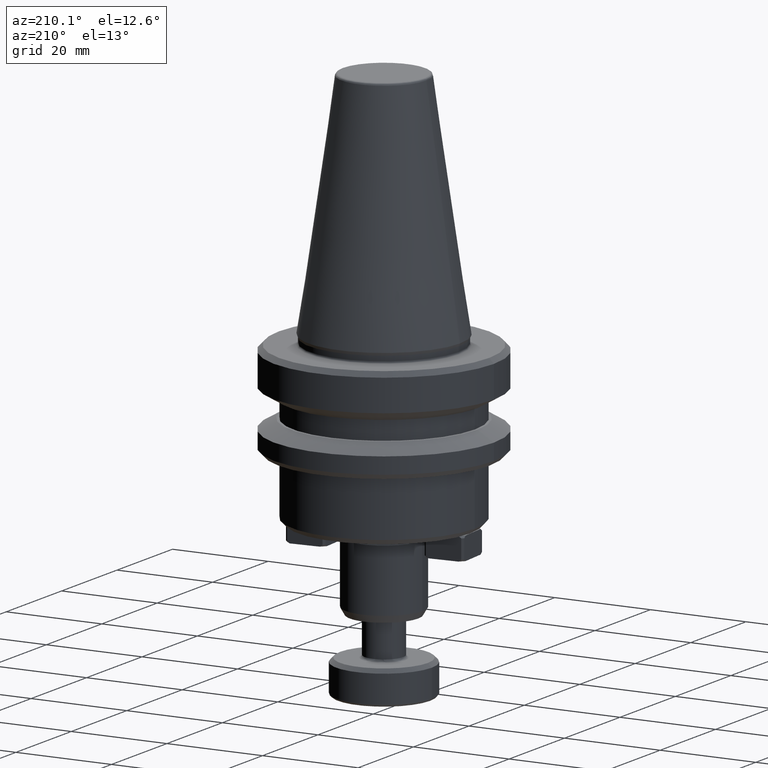
[diagram: clean part render]
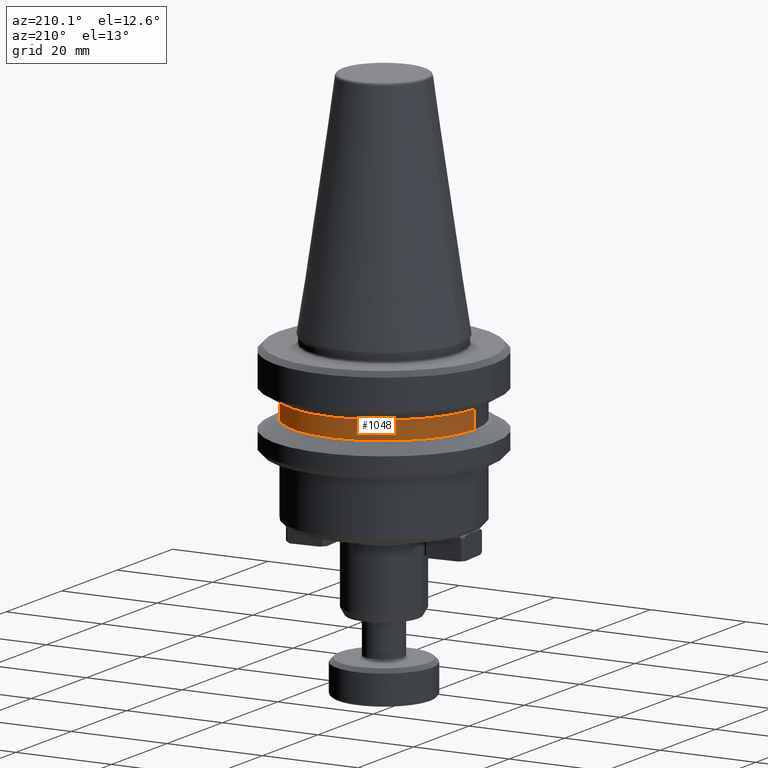
[diagram: same view with one face highlighted and labeled with its STEP entity id]
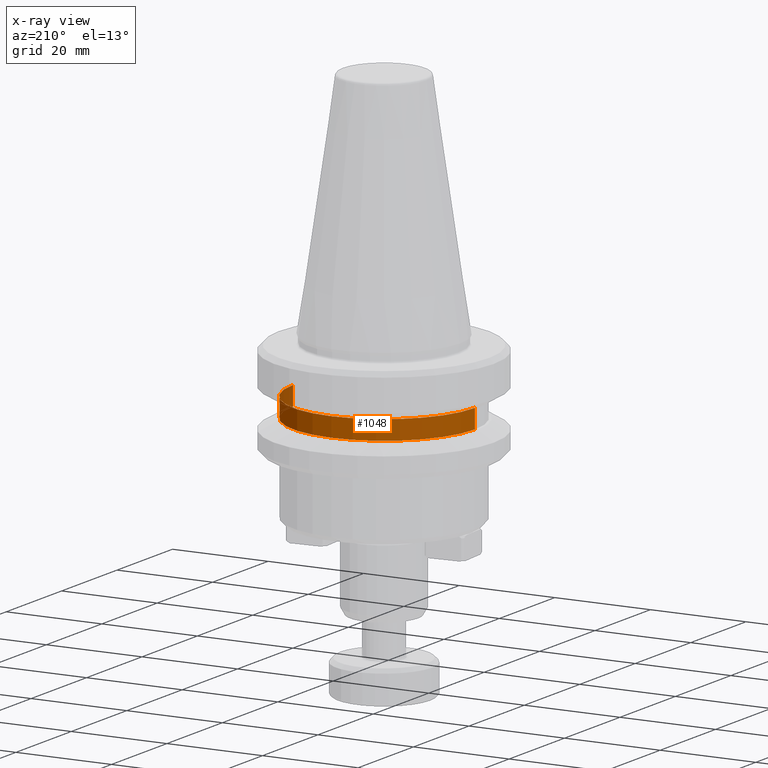
[diagram: x-ray of the same camera — body ghosted, the highlighted face saturated]
A machine part, auxiliary view. The second image highlights one B-rep face of the part: STEP entity #1048.
The next image is the same camera in x-ray: the body ghosted, the highlighted face saturated — about 5% of this face is hidden behind the body in this view.
In plain terms, the highlighted cylindrical surface (partial cylindrical patch) has radius 19 mm, axis along (-0, -0, 1).
Its self-contained STEP definition (entity closure, byte-faithful):
#63 = DIRECTION ( 'NONE',  ( -0.0000000000000000000, -0.0000000000000000000, 1.000000000000000000 ) ) ;
#168 = LINE ( 'NONE', #2266, #2955 ) ;
#245 = EDGE_LOOP ( 'NONE', ( #369, #2001, #3466, #2593 ) ) ;
#267 = EDGE_CURVE ( 'NONE', #3173, #2206, #168, .T. ) ;
#369 = ORIENTED_EDGE ( 'NONE', *, *, #1664, .T. ) ;
#453 = DIRECTION ( 'NONE',  ( 1.000000000000000000, 0.0000000000000000000, 0.0000000000000000000 ) ) ;
#608 = CARTESIAN_POINT ( 'NONE',  ( 41.69949667897863300, 53.21725052380196500, 157.9310822222234100 ) ) ;
#640 = AXIS2_PLACEMENT_3D ( 'NONE', #2807, #3124, #1399 ) ;
#747 = FACE_OUTER_BOUND ( 'NONE', #245, .T. ) ;
#803 = VECTOR ( 'NONE', #3270, 1000.000000000000000 ) ;
#887 = DIRECTION ( 'NONE',  ( -0.0000000000000000000, -0.0000000000000000000, 1.000000000000000000 ) ) ;
#960 = CARTESIAN_POINT ( 'NONE',  ( 22.69949667897850500, 53.21725052380196500, 64.47808018129397600 ) ) ;
#982 = DIRECTION ( 'NONE',  ( 1.000000000000000000, 0.0000000000000000000, 0.0000000000000000000 ) ) ;
#993 = DIRECTION ( 'NONE',  ( -0.0000000000000000000, -0.0000000000000000000, 1.000000000000000000 ) ) ;
#1034 = VERTEX_POINT ( 'NONE', #960 ) ;
#1048 = ADVANCED_FACE ( 'NONE', ( #747 ), #2073, .T. ) ;
#1164 = AXIS2_PLACEMENT_3D ( 'NONE', #608, #63, #453 ) ;
#1399 = DIRECTION ( 'NONE',  ( 1.000000000000000000, 0.0000000000000000000, 0.0000000000000000000 ) ) ;
#1664 = EDGE_CURVE ( 'NONE', #3173, #3469, #3181, .T. ) ;
#1743 = CARTESIAN_POINT ( 'NONE',  ( 22.69949667897850500, 53.21725052380196500, 157.9310822222234100 ) ) ;
#1887 = CIRCLE ( 'NONE', #640, 19.00000000000012800 ) ;
#2001 = ORIENTED_EDGE ( 'NONE', *, *, #2712, .T. ) ;
#2042 = CARTESIAN_POINT ( 'NONE',  ( 41.69949667897863300, 53.21725052380196500, 60.47808018129308000 ) ) ;
#2073 = CYLINDRICAL_SURFACE ( 'NONE', #1164, 19.00000000000012800 ) ;
#2086 = AXIS2_PLACEMENT_3D ( 'NONE', #2042, #993, #982 ) ;
#2206 = VERTEX_POINT ( 'NONE', #3474 ) ;
#2266 = CARTESIAN_POINT ( 'NONE',  ( 60.69949667897876100, 53.21725052380196500, 157.9310822222234100 ) ) ;
#2307 = EDGE_CURVE ( 'NONE', #2206, #1034, #1887, .T. ) ;
#2593 = ORIENTED_EDGE ( 'NONE', *, *, #267, .F. ) ;
#2710 = CARTESIAN_POINT ( 'NONE',  ( 22.69949667897850500, 53.21725052380196500, 60.47808018129308000 ) ) ;
#2712 = EDGE_CURVE ( 'NONE', #3469, #1034, #2852, .T. ) ;
#2807 = CARTESIAN_POINT ( 'NONE',  ( 41.69949667897863300, 53.21725052380196500, 64.47808018129397600 ) ) ;
#2852 = LINE ( 'NONE', #1743, #803 ) ;
#2936 = CARTESIAN_POINT ( 'NONE',  ( 60.69949667897876100, 53.21725052380196500, 60.47808018129308000 ) ) ;
#2955 = VECTOR ( 'NONE', #887, 1000.000000000000000 ) ;
#3124 = DIRECTION ( 'NONE',  ( -0.0000000000000000000, -0.0000000000000000000, 1.000000000000000000 ) ) ;
#3173 = VERTEX_POINT ( 'NONE', #2936 ) ;
#3181 = CIRCLE ( 'NONE', #2086, 19.00000000000012800 ) ;
#3270 = DIRECTION ( 'NONE',  ( -0.0000000000000000000, -0.0000000000000000000, 1.000000000000000000 ) ) ;
#3466 = ORIENTED_EDGE ( 'NONE', *, *, #2307, .F. ) ;
#3469 = VERTEX_POINT ( 'NONE', #2710 ) ;
#3474 = CARTESIAN_POINT ( 'NONE',  ( 60.69949667897876100, 53.21725052380196500, 64.47808018129397600 ) ) ;